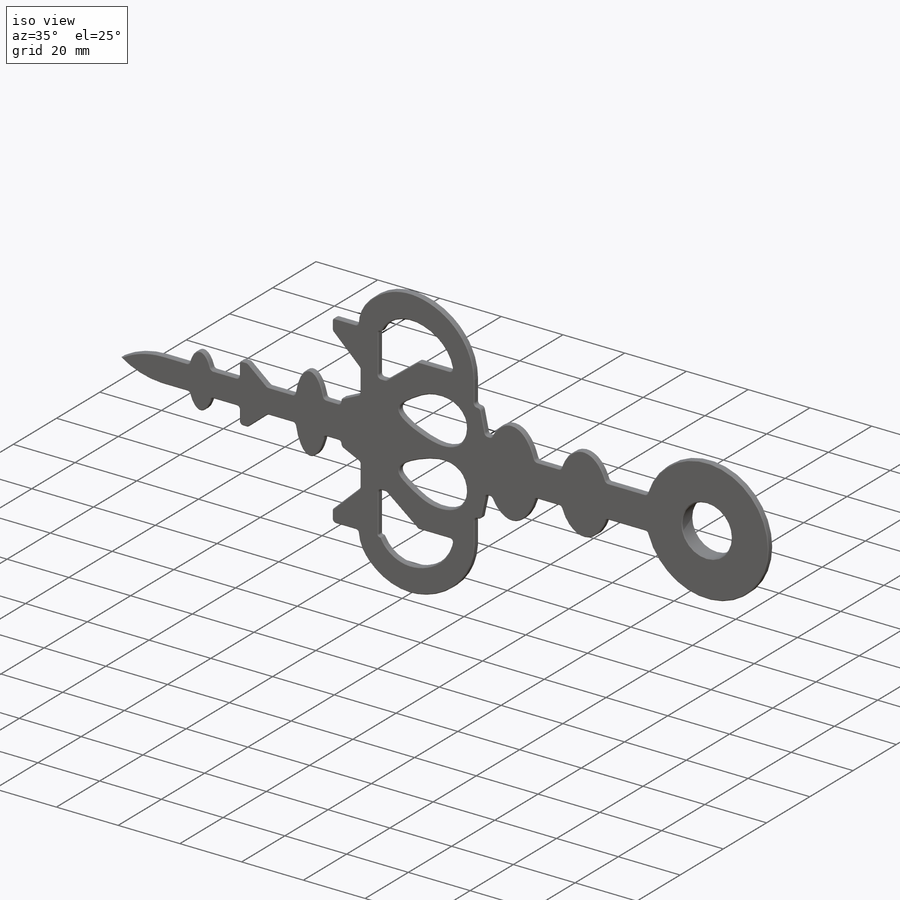
[diagram: iso view]
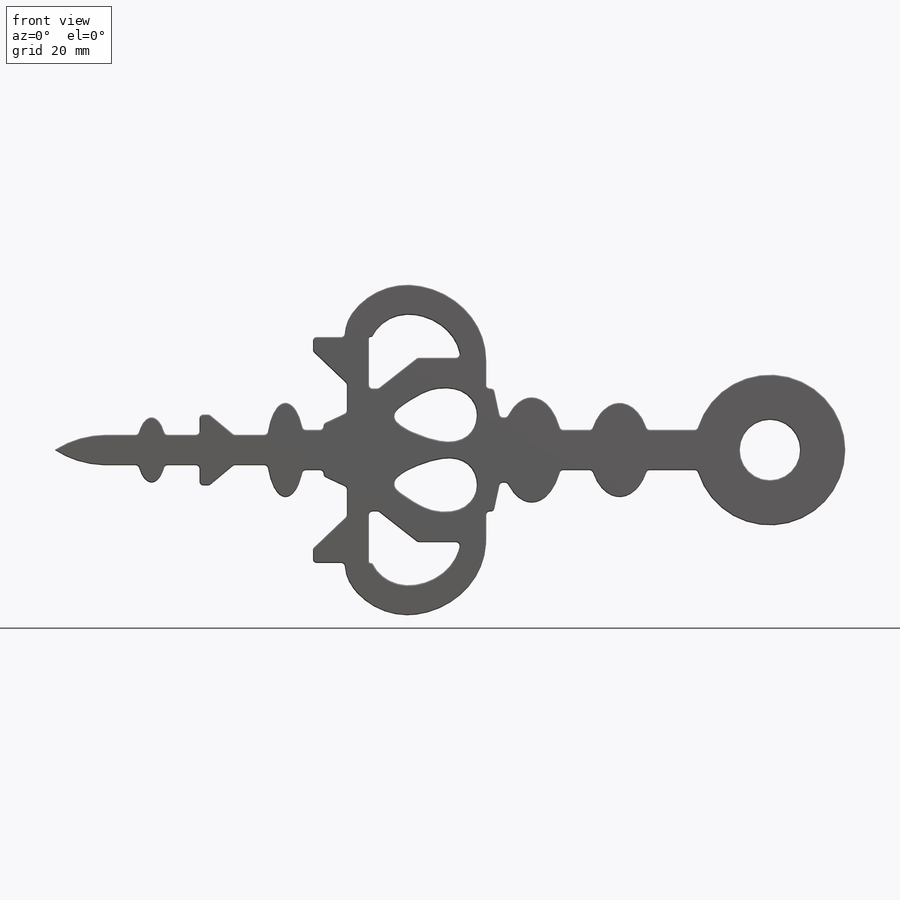
[diagram: front view]
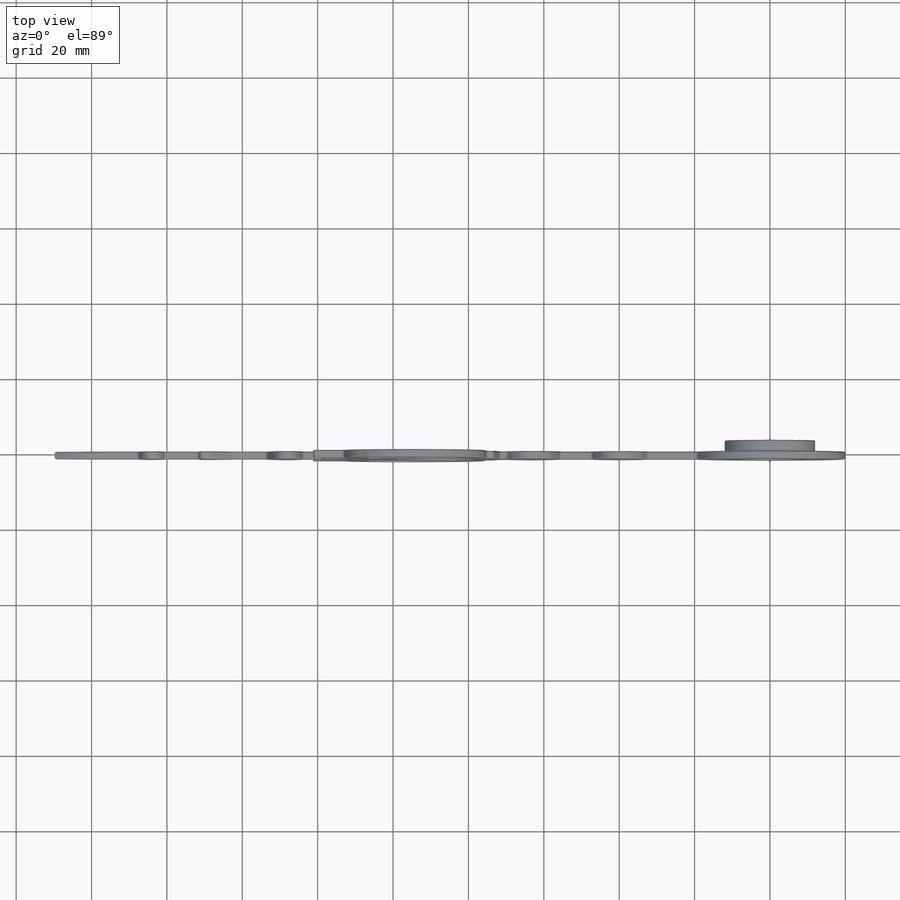
[diagram: top view]
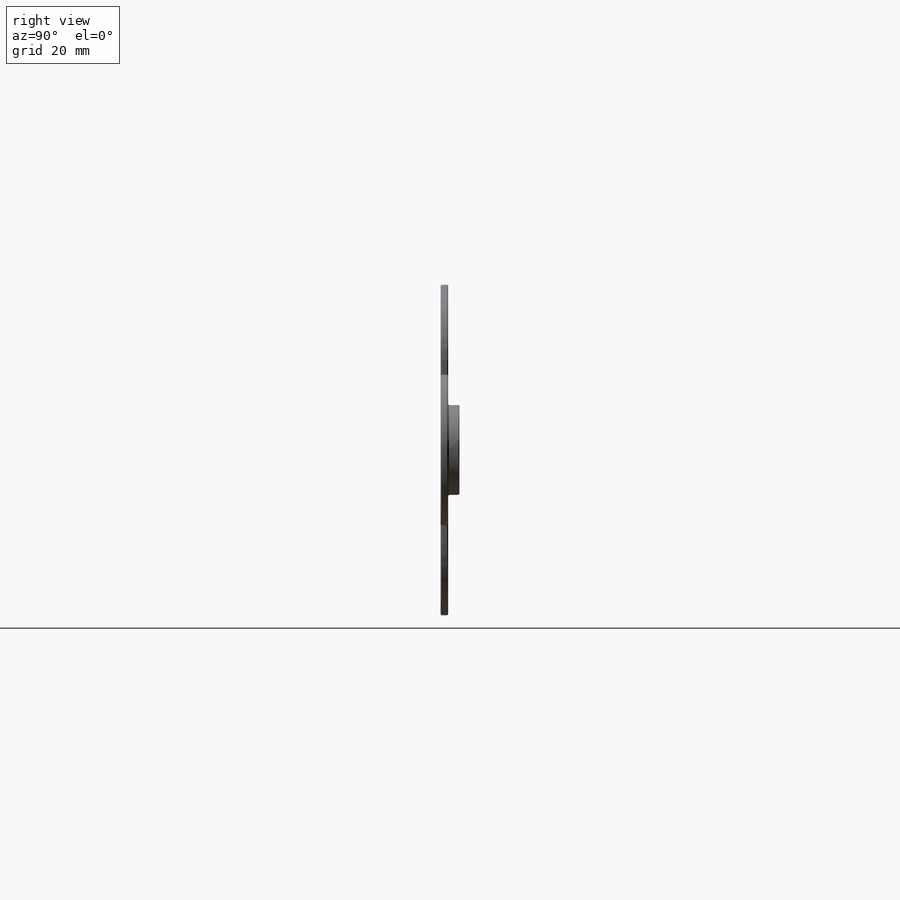
[diagram: right view]
SOLIDWORKS PART (.sldprt)
format: sldprt  version: not decoded by parser v0  size: 957,952 bytes
history: native  units: mm
features: plane x3, sketch x3, extrude x2, material x1, chamfer x1 (+12 scaffold rows collapsed)
feature tree (22):
  scaffold x12  (default folders/planes/origin — collapsed)
  material  "Настроенная пользователем пластмасса"
  plane  "Спереди"
  plane  "Сверху"
  plane  "Справа"
  sketch  "Эскиз1"
  sketch  "Эскиз2"  dims[D2=16.0mm D3=40.0mm D4=1.0mm D5=1.0mm D6=1.0mm D7=1.0mm D8=1.0mm D9=1.0mm D10=1.0mm D11=1.0mm D12=1.0mm D13=1.0mm D14=1.0mm D15=1.0mm D16=1.0mm D17=1.0mm D18=1.0mm D19=1.0mm D20=1.0mm D21=1.0mm D22=1.0mm D23=1.0mm D24=1.0mm D25=1.0mm D26=1.0mm D27=1.0mm D28=1.0mm D29=1.0mm D30=1.0mm D31=1.0mm D32=1.0mm D33=1.0mm D34=1.0mm D35=1.0mm D36=1.0mm D37=1.0mm D38=1.0mm D39=1.0mm D40=1.0mm D41=1.0mm D42=1.0mm D43=1.0mm D44=1.0mm D45=1.0mm D46=1.0mm D47=1.0mm D48=1.0mm D49=1.0mm D50=1.0mm D51=1.0mm D52=1.0mm D53=1.0mm D54=1.0mm D55=1.0mm D56=1.0mm D57=1.0mm D58=0.5mm D59=0.5mm D60=0.5mm D61=0.5mm D1=189.77mm]
  extrude  "Бобышка-Вытянуть1"  Depth=2mm
  sketch  "Эскиз3"  dims[D1=24.0mm]
  extrude  "Бобышка-Вытянуть2"  Depth=3mm
  chamfer  "Фаска1"  Distance=0.25mm Angle=45deg
decode coverage: 5 of 6 modeling features carry decoded parameters
note: suppression state not decoded; provenance and decode notes live in map.json
